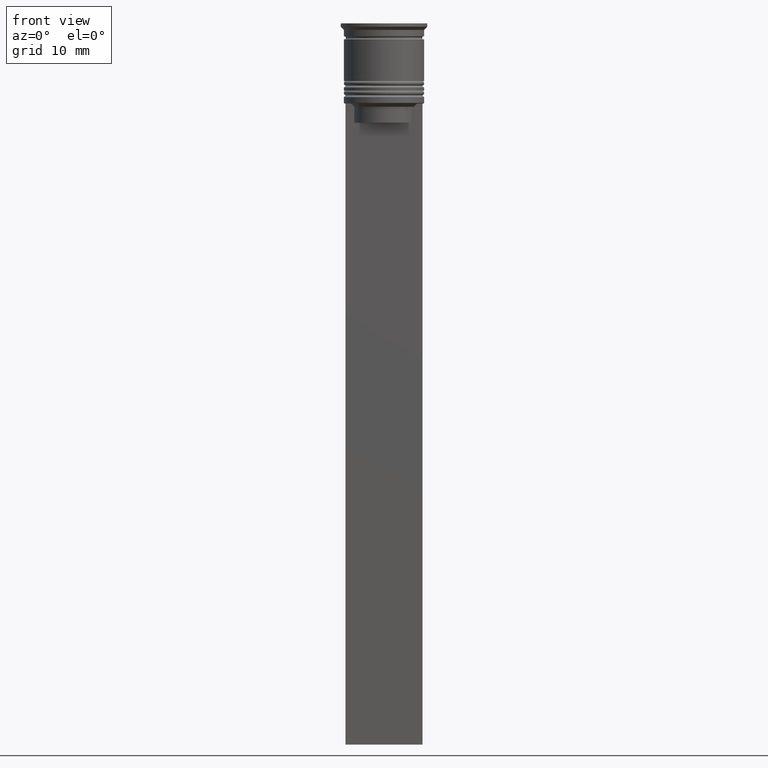
[diagram: clean part render]
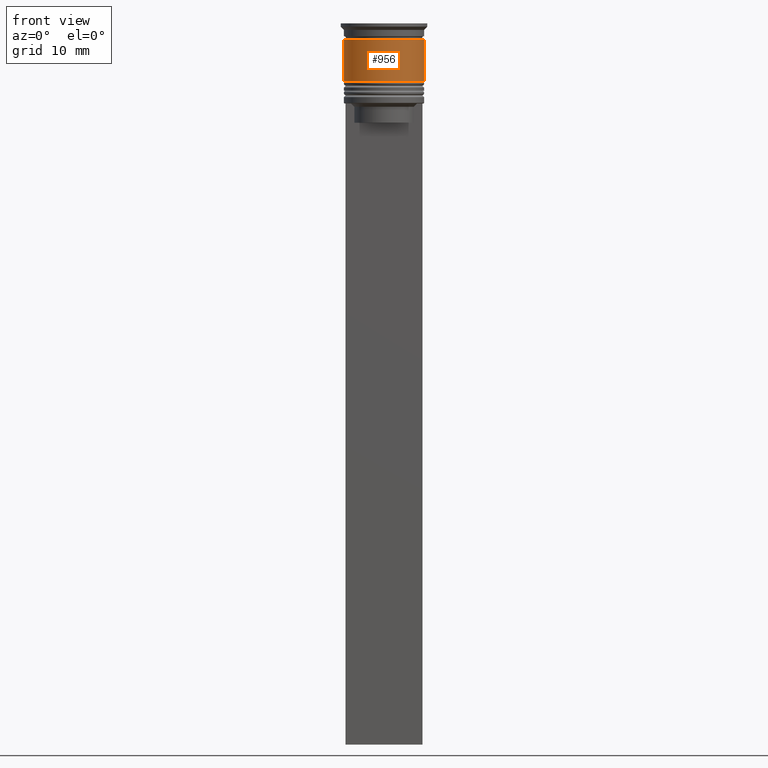
[diagram: same view with one face highlighted and labeled with its STEP entity id]
A machine part, front view. The second image highlights one B-rep face of the part: STEP entity #956.
In plain terms, the highlighted cylindrical surface (partial cylindrical patch) has radius 6.25 mm, axis along (-0, -0, 1).
Its self-contained STEP definition (entity closure, byte-faithful):
#9 = EDGE_CURVE ( 'NONE', #1507, #154, #1864, .T. ) ;
#144 = ORIENTED_EDGE ( 'NONE', *, *, #254, .T. ) ;
#154 = VERTEX_POINT ( 'NONE', #2035 ) ;
#218 = DIRECTION ( 'NONE',  ( -0.000000000000000000, -0.000000000000000000, 1.000000000000000000 ) ) ;
#254 = EDGE_CURVE ( 'NONE', #259, #154, #1538, .T. ) ;
#259 = VERTEX_POINT ( 'NONE', #315 ) ;
#280 = CARTESIAN_POINT ( 'NONE',  ( -6.250000000000000000, 7.654042494670957606E-16, 0.000000000000000000 ) ) ;
#283 = AXIS2_PLACEMENT_3D ( 'NONE', #2198, #218, #1211 ) ;
#315 = CARTESIAN_POINT ( 'NONE',  ( 6.250000000000000888, 0.000000000000000000, -9.000000000000001776 ) ) ;
#385 = VERTEX_POINT ( 'NONE', #671 ) ;
#422 = CYLINDRICAL_SURFACE ( 'NONE', #2339, 6.250000000000000000 ) ;
#473 = DIRECTION ( 'NONE',  ( -0.000000000000000000, -0.000000000000000000, 1.000000000000000000 ) ) ;
#538 = DIRECTION ( 'NONE',  ( 1.000000000000000000, 0.000000000000000000, 0.000000000000000000 ) ) ;
#671 = CARTESIAN_POINT ( 'NONE',  ( -6.250000000000001776, 7.654042494670959579E-16, -9.000000000000001776 ) ) ;
#695 = VECTOR ( 'NONE', #1726, 1000.000000000000000 ) ;
#780 = EDGE_LOOP ( 'NONE', ( #2087, #1733, #144, #1054 ) ) ;
#805 = AXIS2_PLACEMENT_3D ( 'NONE', #2151, #1060, #538 ) ;
#806 = EDGE_CURVE ( 'NONE', #385, #259, #1571, .T. ) ;
#927 = CARTESIAN_POINT ( 'NONE',  ( 0.000000000000000000, 0.000000000000000000, 0.000000000000000000 ) ) ;
#956 = ADVANCED_FACE ( 'NONE', ( #1475 ), #422, .T. ) ;
#1054 = ORIENTED_EDGE ( 'NONE', *, *, #9, .F. ) ;
#1060 = DIRECTION ( 'NONE',  ( -0.000000000000000000, -0.000000000000000000, 1.000000000000000000 ) ) ;
#1211 = DIRECTION ( 'NONE',  ( 1.000000000000000000, 0.000000000000000000, 0.000000000000000000 ) ) ;
#1275 = VECTOR ( 'NONE', #473, 1000.000000000000000 ) ;
#1475 = FACE_OUTER_BOUND ( 'NONE', #780, .T. ) ;
#1485 = DIRECTION ( 'NONE',  ( 1.000000000000000000, 0.000000000000000000, 0.000000000000000000 ) ) ;
#1507 = VERTEX_POINT ( 'NONE', #1885 ) ;
#1538 = LINE ( 'NONE', #1933, #695 ) ;
#1557 = LINE ( 'NONE', #280, #1275 ) ;
#1571 = CIRCLE ( 'NONE', #805, 6.250000000000000888 ) ;
#1657 = DIRECTION ( 'NONE',  ( -0.000000000000000000, -0.000000000000000000, 1.000000000000000000 ) ) ;
#1726 = DIRECTION ( 'NONE',  ( -0.000000000000000000, -0.000000000000000000, 1.000000000000000000 ) ) ;
#1733 = ORIENTED_EDGE ( 'NONE', *, *, #806, .T. ) ;
#1864 = CIRCLE ( 'NONE', #283, 6.249999999999999112 ) ;
#1885 = CARTESIAN_POINT ( 'NONE',  ( -6.249999999999999112, 7.654042494670956620E-16, -2.500000000000000444 ) ) ;
#1933 = CARTESIAN_POINT ( 'NONE',  ( 6.250000000000000000, 0.000000000000000000, 0.000000000000000000 ) ) ;
#2035 = CARTESIAN_POINT ( 'NONE',  ( 6.249999999999999112, 0.000000000000000000, -2.500000000000000444 ) ) ;
#2087 = ORIENTED_EDGE ( 'NONE', *, *, #2254, .F. ) ;
#2151 = CARTESIAN_POINT ( 'NONE',  ( 0.000000000000000000, 0.000000000000000000, -9.000000000000001776 ) ) ;
#2198 = CARTESIAN_POINT ( 'NONE',  ( 0.000000000000000000, 0.000000000000000000, -2.500000000000000444 ) ) ;
#2254 = EDGE_CURVE ( 'NONE', #385, #1507, #1557, .T. ) ;
#2339 = AXIS2_PLACEMENT_3D ( 'NONE', #927, #1657, #1485 ) ;